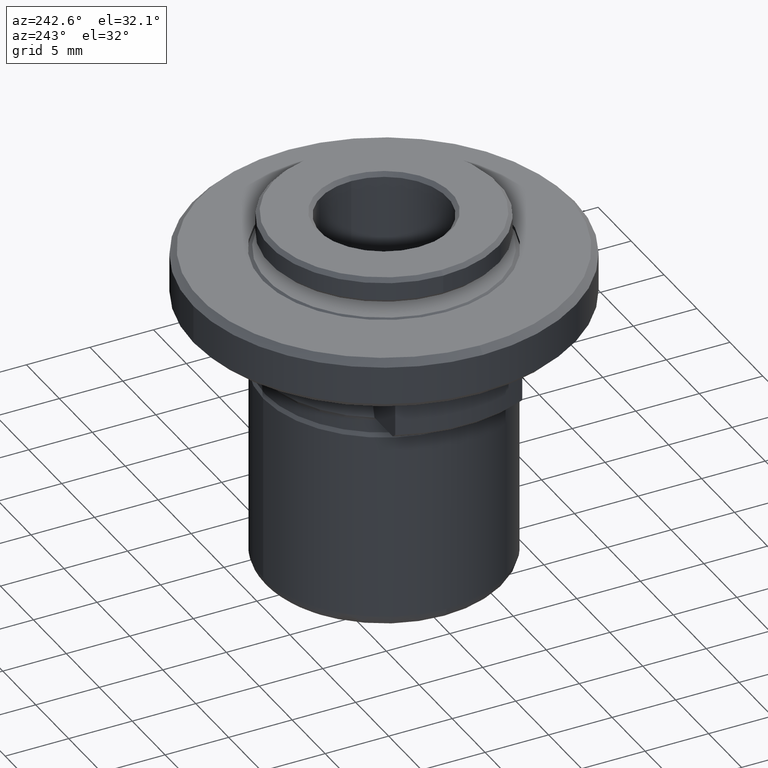
[diagram: clean part render]
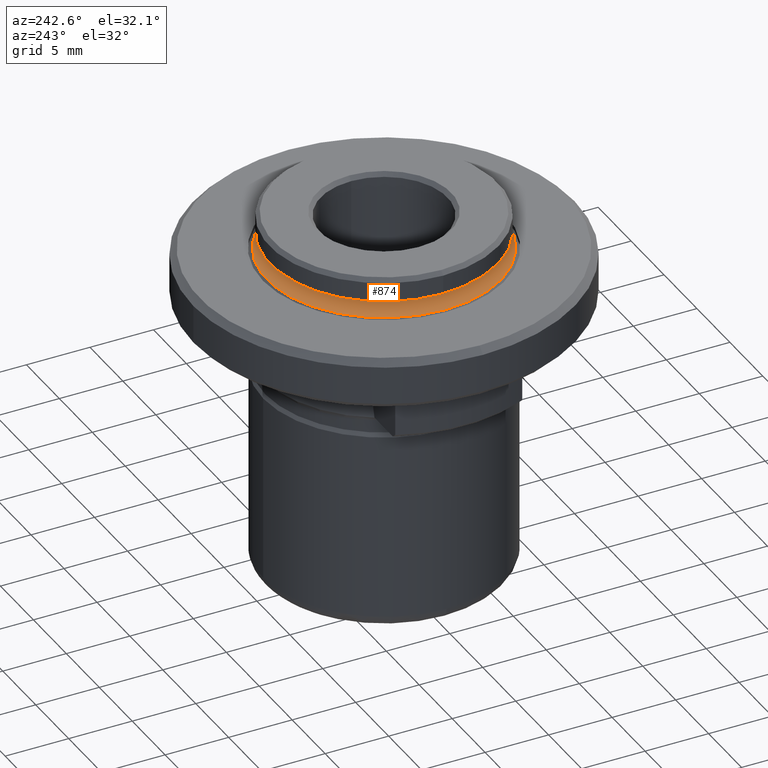
[diagram: same view with one face highlighted and labeled with its STEP entity id]
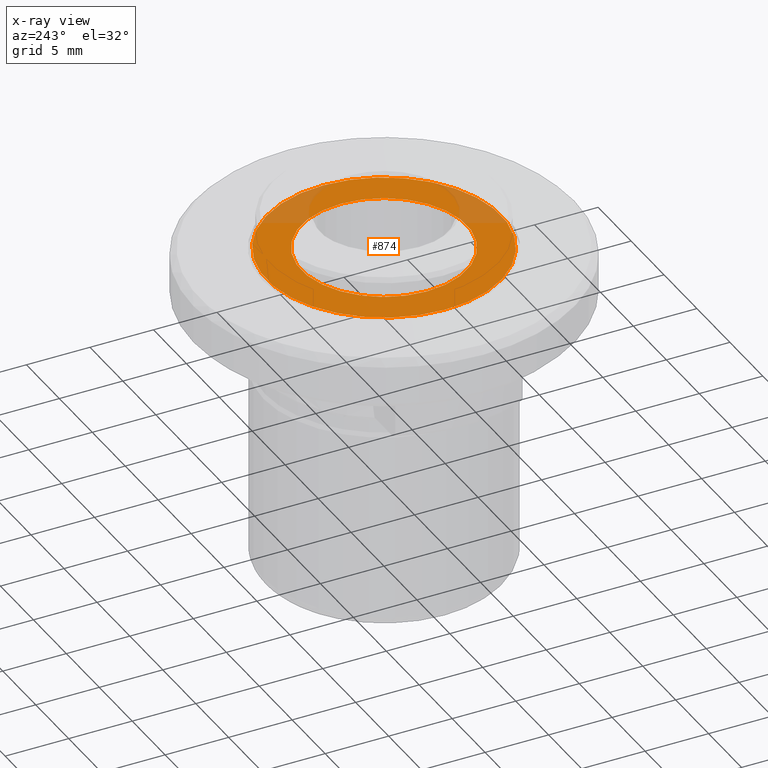
[diagram: x-ray of the same camera — body ghosted, the highlighted face saturated]
A machine part, auxiliary view. The second image highlights one B-rep face of the part: STEP entity #874.
The next image is the same camera in x-ray: the body ghosted, the highlighted face saturated — about 15% of this face is hidden behind the body in this view.
In plain terms, the highlighted planar face has unit normal (0, 0, -1).
Its self-contained STEP definition (entity closure, byte-faithful):
#37 = DIRECTION ( 'NONE',  ( -1.000000000000000000, 0.0000000000000000000, 0.0000000000000000000 ) ) ;
#45 = ORIENTED_EDGE ( 'NONE', *, *, #1210, .T. ) ;
#47 = ORIENTED_EDGE ( 'NONE', *, *, #1624, .T. ) ;
#71 = DIRECTION ( 'NONE',  ( -1.000000000000000000, 0.0000000000000000000, 0.0000000000000000000 ) ) ;
#203 = DIRECTION ( 'NONE',  ( -0.0000000000000000000, -0.0000000000000000000, -1.000000000000000000 ) ) ;
#248 = VERTEX_POINT ( 'NONE', #345 ) ;
#266 = VERTEX_POINT ( 'NONE', #1613 ) ;
#272 = CIRCLE ( 'NONE', #1304, 6.499999999999998200 ) ;
#277 = DIRECTION ( 'NONE',  ( -0.0000000000000000000, -0.0000000000000000000, 1.000000000000000000 ) ) ;
#293 = AXIS2_PLACEMENT_3D ( 'NONE', #1739, #883, #37 ) ;
#320 = CIRCLE ( 'NONE', #898, 9.219999999999961600 ) ;
#345 = CARTESIAN_POINT ( 'NONE',  ( 6.499999999999998200, 7.960204194457793500E-016, 12.75000000000004100 ) ) ;
#465 = DIRECTION ( 'NONE',  ( -0.0000000000000000000, -0.0000000000000000000, 1.000000000000000000 ) ) ;
#536 = VERTEX_POINT ( 'NONE', #890 ) ;
#775 = PLANE ( 'NONE',  #1376 ) ;
#874 = ADVANCED_FACE ( 'NONE', ( #886, #1305 ), #775, .F. ) ;
#883 = DIRECTION ( 'NONE',  ( -0.0000000000000000000, -0.0000000000000000000, -1.000000000000000000 ) ) ;
#886 = FACE_BOUND ( 'NONE', #1794, .T. ) ;
#890 = CARTESIAN_POINT ( 'NONE',  ( 9.219999999999961600, 1.147494050801067600E-015, 12.75000000000003900 ) ) ;
#898 = AXIS2_PLACEMENT_3D ( 'NONE', #1107, #277, #1242 ) ;
#915 = DIRECTION ( 'NONE',  ( 0.0000000000000000000, 0.0000000000000000000, -1.000000000000000000 ) ) ;
#1038 = CARTESIAN_POINT ( 'NONE',  ( 0.0000000000000000000, 0.0000000000000000000, 12.75000000000004100 ) ) ;
#1107 = CARTESIAN_POINT ( 'NONE',  ( 0.0000000000000000000, 0.0000000000000000000, 12.75000000000003900 ) ) ;
#1113 = VERTEX_POINT ( 'NONE', #1705 ) ;
#1170 = DIRECTION ( 'NONE',  ( -1.000000000000000000, 0.0000000000000000000, 0.0000000000000000000 ) ) ;
#1210 = EDGE_CURVE ( 'NONE', #1113, #536, #1658, .T. ) ;
#1222 = ORIENTED_EDGE ( 'NONE', *, *, #1762, .T. ) ;
#1233 = AXIS2_PLACEMENT_3D ( 'NONE', #1296, #465, #1451 ) ;
#1242 = DIRECTION ( 'NONE',  ( -1.000000000000000000, 0.0000000000000000000, 0.0000000000000000000 ) ) ;
#1296 = CARTESIAN_POINT ( 'NONE',  ( 0.0000000000000000000, 0.0000000000000000000, 12.75000000000003900 ) ) ;
#1304 = AXIS2_PLACEMENT_3D ( 'NONE', #1038, #203, #1170 ) ;
#1305 = FACE_OUTER_BOUND ( 'NONE', #1594, .T. ) ;
#1376 = AXIS2_PLACEMENT_3D ( 'NONE', #1484, #915, #71 ) ;
#1397 = CIRCLE ( 'NONE', #293, 6.499999999999998200 ) ;
#1434 = EDGE_CURVE ( 'NONE', #248, #266, #272, .T. ) ;
#1451 = DIRECTION ( 'NONE',  ( -1.000000000000000000, 0.0000000000000000000, 0.0000000000000000000 ) ) ;
#1481 = ORIENTED_EDGE ( 'NONE', *, *, #1434, .T. ) ;
#1484 = CARTESIAN_POINT ( 'NONE',  ( 9.330640000000000700, -9.330640000000000700, 12.75000000000000200 ) ) ;
#1594 = EDGE_LOOP ( 'NONE', ( #45, #47 ) ) ;
#1613 = CARTESIAN_POINT ( 'NONE',  ( -6.499999999999998200, 0.0000000000000000000, 12.75000000000004100 ) ) ;
#1624 = EDGE_CURVE ( 'NONE', #536, #1113, #320, .T. ) ;
#1658 = CIRCLE ( 'NONE', #1233, 9.219999999999961600 ) ;
#1705 = CARTESIAN_POINT ( 'NONE',  ( -9.219999999999961600, 0.0000000000000000000, 12.75000000000003900 ) ) ;
#1739 = CARTESIAN_POINT ( 'NONE',  ( 0.0000000000000000000, 0.0000000000000000000, 12.75000000000004100 ) ) ;
#1762 = EDGE_CURVE ( 'NONE', #266, #248, #1397, .T. ) ;
#1794 = EDGE_LOOP ( 'NONE', ( #1222, #1481 ) ) ;